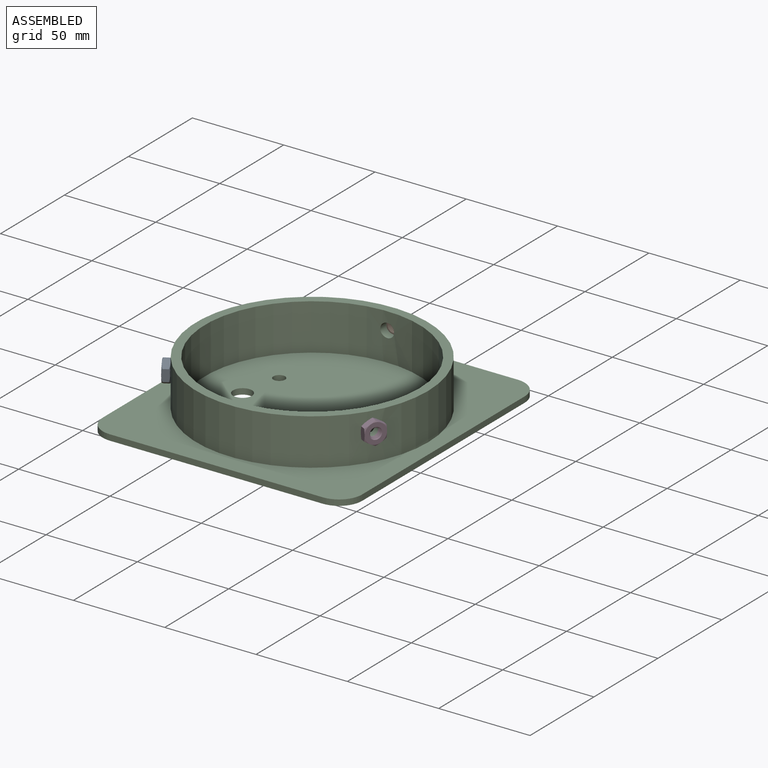
[diagram: assembled view]
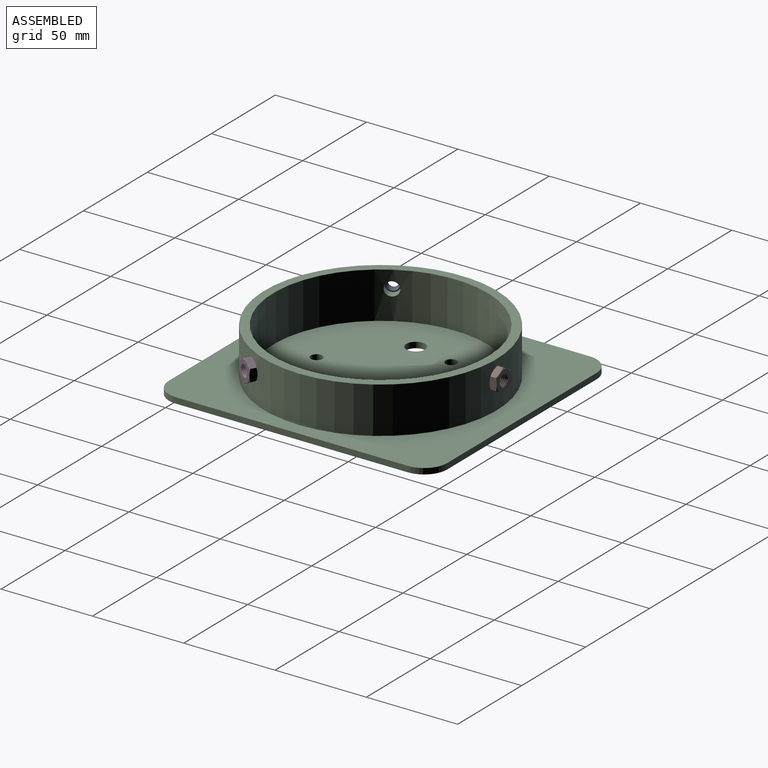
[diagram: assembled view, second angle]
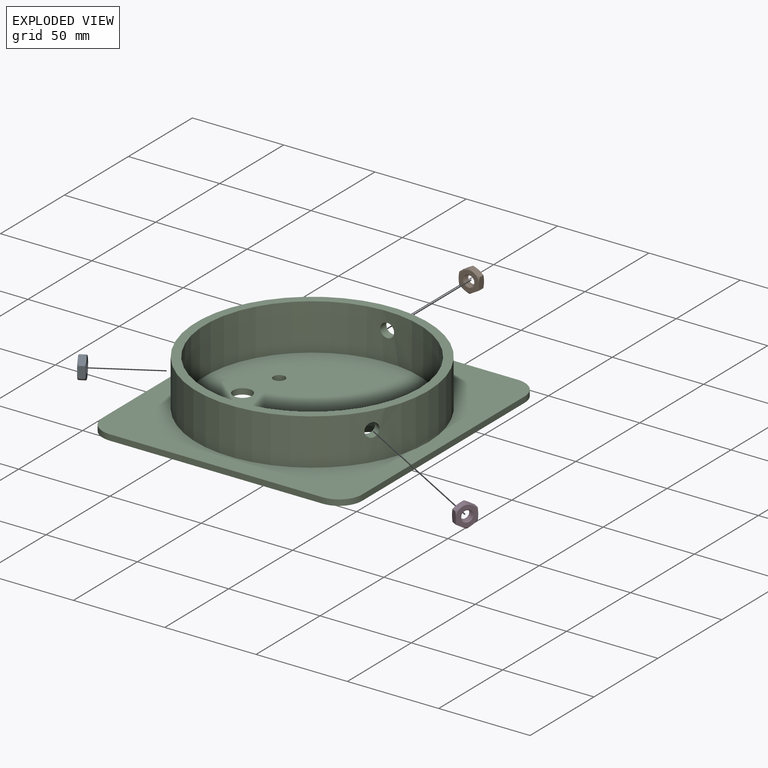
[diagram: exploded view]
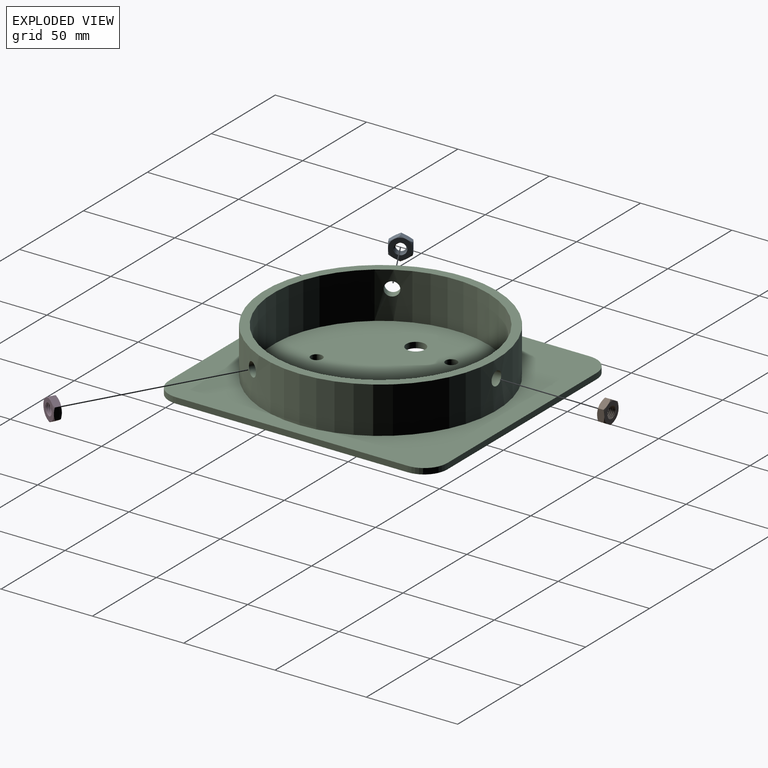
[diagram: exploded view, second angle]
ASSEMBLY  parts=4 mates=6
PART A: 27 faces, bbox 13.4x13.4x5.3 mm
  f0: cone r=5.56mm half-angle=60deg, axis (0,0,1), area 3mm2, adj f12,f13,f16
  f1: cone r=3.17mm half-angle=45deg, axis (0,0,-1), area 7.7mm2, adj f5,f6,f7,f8,f16
  f2: cone r=5.56mm half-angle=60deg, axis (0,0,-1), area 3mm2, adj f9,f12,f13
  f3: cone r=3.17mm half-angle=45deg, axis (0,0,1), area 7.7mm2, adj f5,f6,f7,f9
  f4: cylinder r=3.17mm len=6.35mm, axis (0,0,-1), area 9.9mm2, adj f5,f7,f9,f16
  f5: bspline ~6.35x6.35mm, area 46.2mm2, adj f1,f3,f4,f6
  f6: cylinder r=2.59mm len=5.17mm, axis (0,0,-1), area 5.6mm2, adj f1,f3,f5,f7,f8
  f7: bspline ~6.32x6.26mm, area 42.8mm2, adj f1,f3,f4,f6
  f8: bspline ~6.35x6.35mm, area 1mm2, adj f1,f6
  f9: plane 11.11x11.11mm, normal (0,0,1), area 65.3mm2, adj f2,f3,f4,f17,f18,f19,f20,f21
  f10: plane 6.08x4.5mm, normal (-0.5,0.87,0), area 23.3mm2, adj f11,f15,f17,f21,f24,f25
  f11: plane 6.95x4.5mm, normal (-1,0,0), area 23.3mm2, adj f10,f12,f20,f21,f25,f26
  f12: plane 6.08x4.5mm, normal (-0.5,-0.87,0), area 23.3mm2, adj f0,f2,f11,f13,f20,f26
  f13: plane 6.08x4.5mm, normal (0.5,-0.87,0), area 23.3mm2, adj f0,f2,f12,f14,f19,f22
  f14: plane 6.95x4.5mm, normal (1,0,0), area 23.3mm2, adj f13,f15,f18,f19,f22,f23
  f15: plane 6.08x4.5mm, normal (0.5,0.87,0), area 23.3mm2, adj f10,f14,f17,f18,f23,f24
  f16: plane 11.11x11.11mm, normal (0,0,-1), area 65.3mm2, adj f0,f1,f4,f22,f23,f24,f25,f26
  f17: cone r=5.56mm half-angle=60deg, axis (0,0,-1), area 3mm2, adj f9,f10,f15
  f18: cone r=5.56mm half-angle=60deg, axis (0,0,-1), area 3mm2, adj f9,f14,f15
  f19: cone r=5.56mm half-angle=60deg, axis (0,0,-1), area 3mm2, adj f9,f13,f14
  f20: cone r=5.56mm half-angle=60deg, axis (0,0,-1), area 3mm2, adj f9,f11,f12
  f21: cone r=5.56mm half-angle=60deg, axis (0,0,-1), area 3mm2, adj f9,f10,f11
  f22: cone r=5.56mm half-angle=60deg, axis (0,0,1), area 3mm2, adj f13,f14,f16
  f23: cone r=5.56mm half-angle=60deg, axis (0,0,1), area 3mm2, adj f14,f15,f16
  f24: cone r=5.56mm half-angle=60deg, axis (0,0,1), area 3mm2, adj f10,f15,f16
  f25: cone r=5.56mm half-angle=60deg, axis (0,0,1), area 3mm2, adj f10,f11,f16
  f26: cone r=5.56mm half-angle=60deg, axis (0,0,1), area 3mm2, adj f11,f12,f16
PART B: same geometry as A
PART C: 22 faces, bbox 142.1x152.4x28.6 mm
  f0: cylinder r=3.77mm len=8.98mm, axis (0.87,-0.5,0), area 113.3mm2, adj f2,f3
  f1: cylinder r=3.77mm len=8.98mm, axis (-0.87,-0.5,0), area 113.3mm2, adj f2,f3
  f2: cylinder r=58.74mm len=117.48mm, axis (0,0,-1), area 9239.7mm2, adj f0,f1,f14,f15,f21
  f3: cylinder r=63.51mm len=127.03mm, axis (0,0,-1), area 10001.8mm2, adj f0,f1,f12,f14,f21
  f4: plane 127x3.18mm, normal (1,0,0), area 403.2mm2, adj f5,f11,f12,f13
  f5: cylinder r=12.7mm len=12.7mm, axis (0,0,-1), area 63.3mm2, adj f4,f6,f12,f13
  f6: plane 116.68x3.18mm, normal (0,1,0), area 370.5mm2, adj f5,f7,f12,f13
  f7: cylinder r=12.7mm len=12.7mm, axis (0,0,-1), area 63.3mm2, adj f6,f8,f12,f13
  f8: plane 127x3.18mm, normal (-1,0,0), area 403.2mm2, adj f7,f9,f12,f13
  f9: cylinder r=12.7mm len=12.7mm, axis (0,0,-1), area 63.3mm2, adj f8,f10,f12,f13
  f10: plane 116.68x3.18mm, normal (0,-1,0), area 370.5mm2, adj f9,f11,f12,f13
  f11: cylinder r=12.7mm len=12.7mm, axis (0,0,-1), area 63.3mm2, adj f4,f10,f12,f13
  f12: plane 152.4x142.08mm, normal (0,0,1), area 8842mm2, adj f3,f4,f5,f6,f7,f8,f9,f10
  f13: plane 152.4x142.08mm, normal (0,0,-1), area 21252.5mm2, adj f4,f5,f6,f7,f8,f9,f10,f11
  f14: plane 127.03x127.03mm, normal (0,0,1), area 1834mm2, adj f2,f3
  f15: plane 117.48x117.48mm, normal (0,0,1), area 10576.5mm2, adj f2,f16,f17,f18,f19,f20
  f16: cylinder r=5.16mm len=10.32mm, axis (0,0,1), area 102.9mm2, adj f13,f15
  f17: cylinder r=5.16mm len=10.32mm, axis (0,0,1), area 102.9mm2, adj f13,f15
  f18: cylinder r=3.17mm len=6.35mm, axis (0,0,1), area 63.3mm2, adj f13,f15
  f19: cylinder r=3.17mm len=6.35mm, axis (0,0,1), area 63.3mm2, adj f13,f15
  f20: cylinder r=3.17mm len=6.35mm, axis (0,0,1), area 63.3mm2, adj f13,f15
  f21: cylinder r=3.77mm len=7.54mm, axis (0,1,0), area 113.3mm2, adj f2,f3
PART D: same geometry as A
PLACE A rot(axis=(-0.77,0.45,-0.45),104.5deg) t=(21.63,-65.15,-37.73)mm
PLACE B rot(axis=(0,-0.71,0.71),180deg) t=(78.37,33.14,-37.73)mm
PLACE C t=(78.37,-32.39,-56.78)mm fixed
PLACE D rot(axis=(0.38,-0.65,-0.65),138.6deg) t=(135.12,-65.15,-37.73)mm
MATE cylindrical A.f6 <-> C.f1  axis (-0.87,-0.5,0) through (21.63,-65.15,-37.73)mm
MATE cylindrical B.f6 <-> C.f21  axis (0,1,0) through (78.37,33.14,-37.73)mm
MATE cylindrical D.f6 <-> C.f0  axis (0.87,-0.5,0) through (135.12,-65.15,-37.73)mm
MATE fastened C.f1 <-> A.f0  axis (-0.87,-0.5,0) through (23.34,-64.16,-37.73)mm
MATE fastened D.f0 <-> C.f0  axis (-0.87,0.5,0) through (133.41,-64.16,-37.73)mm
MATE fastened C.f21 <-> B.f0  axis (0,1,0) through (78.37,31.16,-37.73)mm
